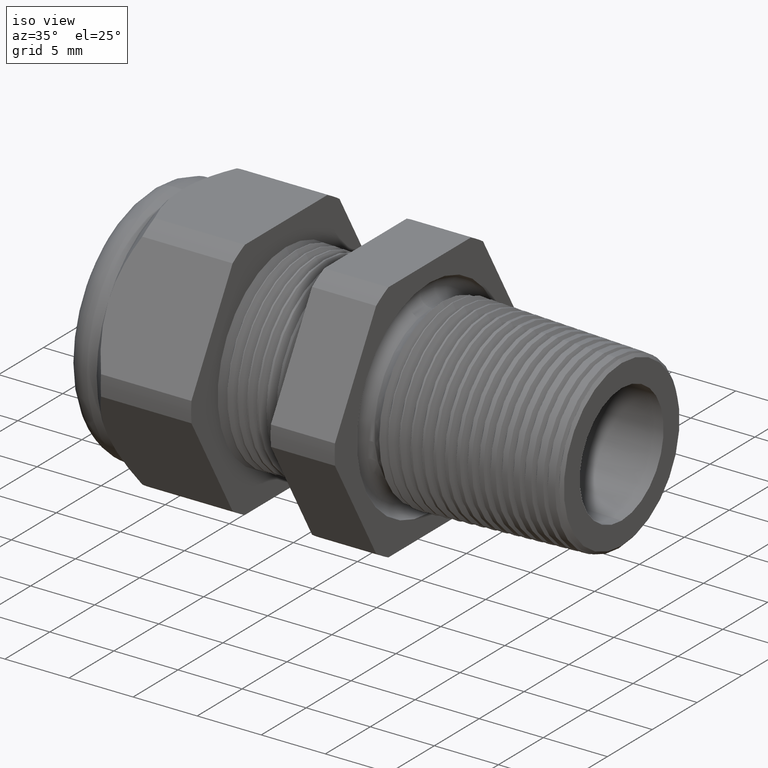
[diagram: clean part render]
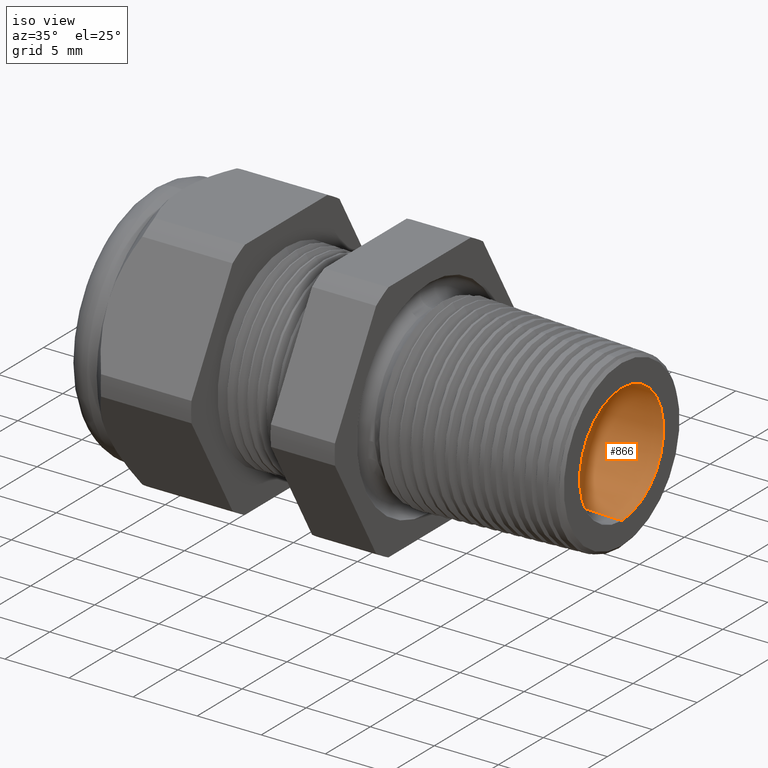
[diagram: same view with one face highlighted and labeled with its STEP entity id]
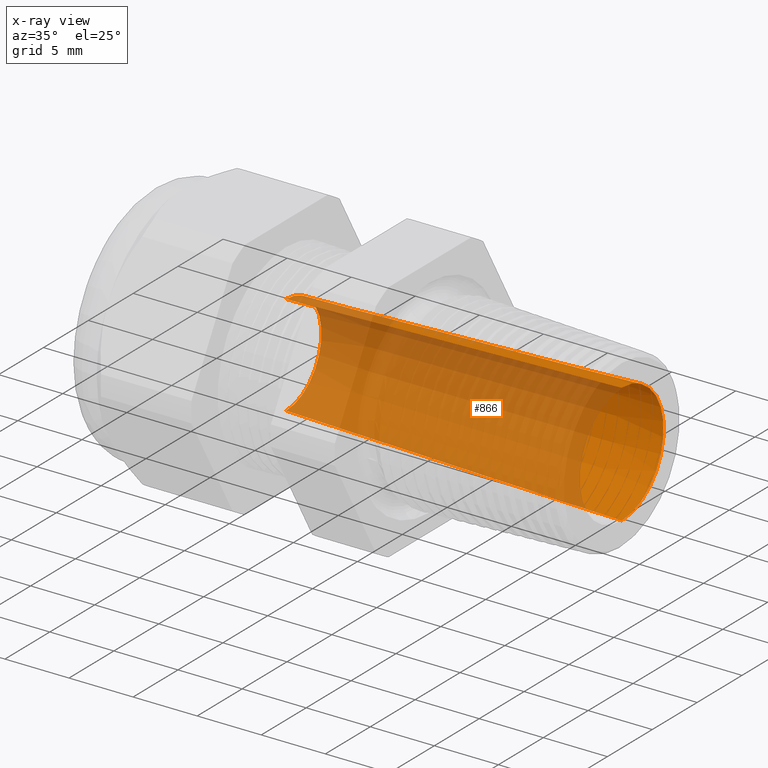
[diagram: x-ray of the same camera — body ghosted, the highlighted face saturated]
A machine part, iso view. The second image highlights one B-rep face of the part: STEP entity #866.
The next image is the same camera in x-ray: the body ghosted, the highlighted face saturated — about 78% of this face is hidden behind the body in this view.
In plain terms, the highlighted conical surface has half-angle 1.611 deg.
Its self-contained STEP definition (entity closure, byte-faithful):
#309 = VERTEX_POINT ( 'NONE', #2699 ) ;
#312 = VERTEX_POINT ( 'NONE', #2693 ) ;
#314 = EDGE_CURVE ( 'NONE', #329, #312, #2692, .T. ) ;
#326 = VERTEX_POINT ( 'NONE', #2672 ) ;
#329 = VERTEX_POINT ( 'NONE', #2730 ) ;
#336 = EDGE_CURVE ( 'NONE', #326, #309, #2724, .T. ) ;
#864 = EDGE_CURVE ( 'NONE', #312, #309, #3778, .T. ) ;
#866 = ADVANCED_FACE ( 'NONE', ( #3773 ), #3772, .F. ) ;
#867 = EDGE_LOOP ( 'NONE', ( #868, #869, #871, #872 ) ) ;
#868 = ORIENTED_EDGE ( 'NONE', *, *, #336, .F. ) ;
#869 = ORIENTED_EDGE ( 'NONE', *, *, #870, .F. ) ;
#870 = EDGE_CURVE ( 'NONE', #329, #326, #3766, .T. ) ;
#871 = ORIENTED_EDGE ( 'NONE', *, *, #314, .T. ) ;
#872 = ORIENTED_EDGE ( 'NONE', *, *, #864, .T. ) ;
#2672 = CARTESIAN_POINT ( 'NONE',  ( -0.7508661417322833900, 2.075784658813404700E-017, 0.1550000000000000000 ) ) ;
#2689 = DIRECTION ( 'NONE',  ( 0.9996045018004825500, 0.0000000000000000000, -0.02812187725257734400 ) ) ;
#2690 = VECTOR ( 'NONE', #2689, 39.37007874015748900 ) ;
#2691 = CARTESIAN_POINT ( 'NONE',  ( -0.7508661417322833900, 0.0000000000000000000, -0.1550000000000000000 ) ) ;
#2692 = LINE ( 'NONE', #2691, #2690 ) ;
#2693 = CARTESIAN_POINT ( 'NONE',  ( 0.2799999999999999700, 0.0000000000000000000, -0.1840013610877269900 ) ) ;
#2699 = CARTESIAN_POINT ( 'NONE',  ( 0.2799999999999999700, 2.253366778948412500E-017, 0.1840013610877269900 ) ) ;
#2716 = DIRECTION ( 'NONE',  ( 0.9996045018004825500, 3.443936696338360500E-018, 0.02812187725257734400 ) ) ;
#2717 = VECTOR ( 'NONE', #2716, 39.37007874015748900 ) ;
#2718 = CARTESIAN_POINT ( 'NONE',  ( -0.7508661417322833900, 1.898202538678397300E-017, 0.1550000000000000000 ) ) ;
#2724 = LINE ( 'NONE', #2718, #2717 ) ;
#2730 = CARTESIAN_POINT ( 'NONE',  ( -0.7508661417322833900, 0.0000000000000000000, -0.1550000000000000000 ) ) ;
#3763 = DIRECTION ( 'NONE',  ( 0.0000000000000000000, 0.0000000000000000000, -1.000000000000000000 ) ) ;
#3764 = DIRECTION ( 'NONE',  ( 1.000000000000000000, 0.0000000000000000000, 0.0000000000000000000 ) ) ;
#3765 = AXIS2_PLACEMENT_3D ( 'NONE', #3771, #3764, #3763 ) ;
#3766 = CIRCLE ( 'NONE', #3765, 0.1550000000000000000 ) ;
#3767 = DIRECTION ( 'NONE',  ( 0.0000000000000000000, 0.0000000000000000000, -1.000000000000000000 ) ) ;
#3768 = DIRECTION ( 'NONE',  ( 1.000000000000000000, 0.0000000000000000000, 0.0000000000000000000 ) ) ;
#3769 = CARTESIAN_POINT ( 'NONE',  ( -0.7508661417322833900, 0.0000000000000000000, 0.0000000000000000000 ) ) ;
#3770 = AXIS2_PLACEMENT_3D ( 'NONE', #3769, #3768, #3767 ) ;
#3771 = CARTESIAN_POINT ( 'NONE',  ( -0.7508661417322833900, 0.0000000000000000000, 0.0000000000000000000 ) ) ;
#3772 = CONICAL_SURFACE ( 'NONE', #3770, 0.1550000000000000000, 0.02812558522312239400 ) ;
#3773 = FACE_OUTER_BOUND ( 'NONE', #867, .T. ) ;
#3774 = DIRECTION ( 'NONE',  ( 0.0000000000000000000, 0.0000000000000000000, -1.000000000000000000 ) ) ;
#3775 = DIRECTION ( 'NONE',  ( 1.000000000000000000, 0.0000000000000000000, 0.0000000000000000000 ) ) ;
#3776 = CARTESIAN_POINT ( 'NONE',  ( 0.2799999999999999700, 0.0000000000000000000, 0.0000000000000000000 ) ) ;
#3777 = AXIS2_PLACEMENT_3D ( 'NONE', #3776, #3775, #3774 ) ;
#3778 = CIRCLE ( 'NONE', #3777, 0.1840013610877269900 ) ;